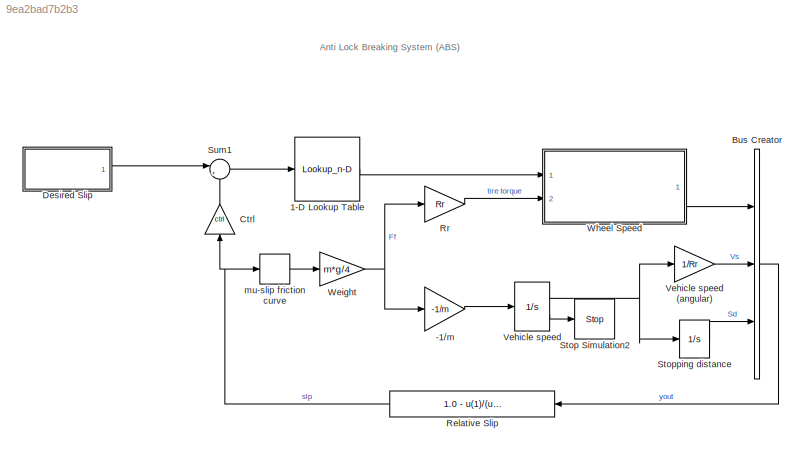
MODEL slx_9ea2bad7b2b3
KIND model
CONFIG AbsTol = auto
CONFIG EnableMultiTasking = off
CONFIG FixedStep = auto
CONFIG MaxStep = auto
CONFIG MinStep = auto
CONFIG RelTol = 1e-3
CONFIG SampleTimeConstraint = Unconstrained
CONFIG SolverName = VariableStepAuto
CONFIG StartTime = 0.0
CONFIG StopTime = 25
WORKSPACE source: mxarray member
WORKSPACE I = 5
WORKSPACE Kf = 1
WORKSPACE PBmax = 1500
WORKSPACE Rr = 1.25
WORKSPACE TB = 0.01
WORKSPACE ctrl = 1
WORKSPACE g = 32.18
WORKSPACE m = 50
WORKSPACE mu = [0 0.4 0.8 0.97 1 0.98 0.96 0.94 0.92 0.9 0.88 0.855 ... (21 elements, 1x21)]
WORKSPACE slip = [0 0.05 0.1 0.15 0.2 0.25 0.3 0.35 0.4 0.45 0.5 0.55 ... (21 elements, 1x21)]
WORKSPACE v0 = 88
BLOCK [Gain] -1//m
  Gain = -1/m
  OutDataTypeStr = Inherit: Same as input
  ParamDataTypeStr = Inherit: Same as input
  SaturateOnIntegerOverflow = on
BLOCK [Lookup_n-D] 1-D Lookup Table
  BreakpointsForDimension1 = [-5:5]
  InputPortMap = u0
  InternalRulePriority = Speed
  NumberOfTableDimensions = 1
  Ports = [1, 1]
  RndMeth = Simplest
  Table = tanh([-5:5])
BLOCK [BusCreator] Bus Creator
  DisplayOption = bar
  InheritFromInputs = on
  Inputs = 3
  Ports = [3, 1]
BLOCK [Gain] Ctrl
  Gain = ctrl
  NameLocation = left
  OutDataTypeStr = Inherit: Same as input
  ParamDataTypeStr = Inherit: Same as input
  SaturateOnIntegerOverflow = on
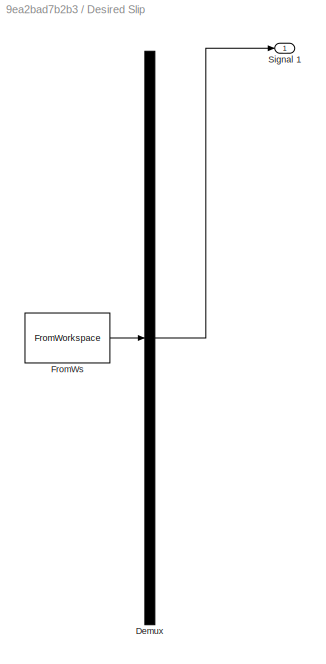
BLOCK [SubSystem] Desired Slip 
  ClipboardFcn = sigbuilder_block('clipboard');
  CloseFcn = sigbuilder_block('close');
  ContinueFcn = sigbuilder_block('continue');
  CopyFcn = sigbuilder_block('copy');
  DeleteFcn = sigbuilder_block('delete');
  LoadFcn = sigbuilder_block('load');
  MaskHideContents = on
  ModelCloseFcn = sigbuilder_block('modelClose');
  NameChangeFcn = sigbuilder_block('namechange');
  OpenFcn = sigbuilder_block('open',[448.2 129 550.8 400.2 ]);
  PauseFcn = sigbuilder_block('pause');
  Ports = [0, 1]
  PreSaveFcn = sigbuilder_block('preSave');
  RequestExecContextInheritance = off
  StartFcn = sigbuilder_block('start');
  StopFcn = sigbuilder_block('stop');
  Tag = STV Subsys
BLOCK [Demux] Desired Slip /Demux
  DisplayOption = none
  Outputs = 1
  Ports = [1, 1]
  Tag = STV Demux
BLOCK [FromWorkspace] Desired Slip /FromWs
  Tag = STV FromWs
  VariableName = tuvar
BLOCK [Outport] Desired Slip /Signal 1
  Tag = STV Outport
BLOCK [Fcn] Relative Slip
  Expr = 1.0 - u(1)/(u(2) + (u(2)==0)*eps)
BLOCK [Gain] Rr
  Gain = Rr
  OutDataTypeStr = Inherit: Same as input
  ParamDataTypeStr = Inherit: Same as input
  SaturateOnIntegerOverflow = on
BLOCK [Stop] Stop Simulation2
BLOCK [Integrator] Stopping distance
  LowerSaturationLimit = 0
  Ports = [1, 1]
  UpperSaturationLimit = 1000
BLOCK [Sum] Sum1
  InputSameDT = on
  Inputs = |+-
  OutDataTypeStr = Inherit: Same as first input
  Ports = [2, 1]
  SaturateOnIntegerOverflow = on
BLOCK [Integrator] Vehicle speed
  InitialCondition = v0
  LimitOutput = on
  LowerSaturationLimit = 0
  Ports = [1, 2]
  ShowSaturationPort = on
  UpperSaturationLimit = 1000
BLOCK [Gain] Vehicle speed (angular)
  Gain = 1/Rr
  OutDataTypeStr = Inherit: Same as input
  ParamDataTypeStr = Inherit: Same as input
  SaturateOnIntegerOverflow = on
BLOCK [Gain] Weight
  Gain = m*g/4
  OutDataTypeStr = Inherit: Same as input
  ParamDataTypeStr = Inherit: Same as input
  SaturateOnIntegerOverflow = on
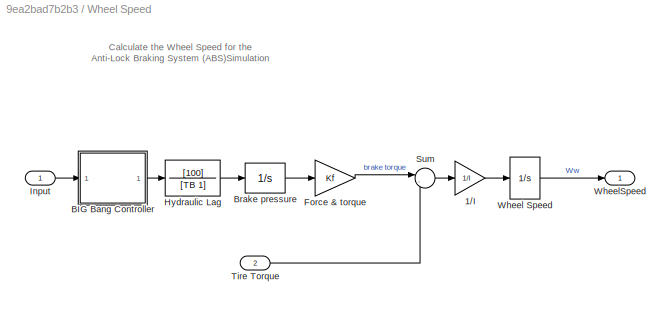
BLOCK [SubSystem] Wheel Speed
  Ports = [2, 1]
  RequestExecContextInheritance = off
BLOCK [Gain] Wheel Speed/1//I
  Gain = 1/I
  OutDataTypeStr = Inherit: Same as input
  ParamDataTypeStr = Inherit: Same as input
  SaturateOnIntegerOverflow = on
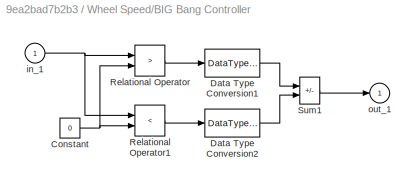
BLOCK [SubSystem] Wheel Speed/BIG Bang Controller
  Ports = [1, 1]
  RequestExecContextInheritance = off
BLOCK [Constant] Wheel Speed/BIG Bang Controller/Constant
  Value = 0
BLOCK [DataTypeConversion] Wheel Speed/BIG Bang Controller/Data Type Conversion1
  OutDataTypeStr = double
BLOCK [DataTypeConversion] Wheel Speed/BIG Bang Controller/Data Type Conversion2
  OutDataTypeStr = double
BLOCK [RelationalOperator] Wheel Speed/BIG Bang Controller/Relational Operator
  Operator = >
  OutDataTypeStr = boolean
  Ports = [2, 1]
BLOCK [RelationalOperator] Wheel Speed/BIG Bang Controller/Relational Operator1
  Operator = <
  OutDataTypeStr = boolean
  Ports = [2, 1]
BLOCK [Sum] Wheel Speed/BIG Bang Controller/Sum1
  IconShape = rectangular
  InputSameDT = on
  Inputs = +-
  OutDataTypeStr = Inherit: Same as first input
  Ports = [2, 1]
  SaturateOnIntegerOverflow = on
BLOCK [Inport] Wheel Speed/BIG Bang Controller/in_1
BLOCK [Outport] Wheel Speed/BIG Bang Controller/out_1
  InitialOutput = 0
  VectorParamsAs1DForOutWhenUnconnected = off
BLOCK [Integrator] Wheel Speed/Brake pressure
  LimitOutput = on
  LowerSaturationLimit = 0
  Ports = [1, 1]
  UpperSaturationLimit = PBmax
BLOCK [Gain] Wheel Speed/Force & torque
  Gain = Kf
  OutDataTypeStr = Inherit: Same as input
  ParamDataTypeStr = Inherit: Same as input
  SaturateOnIntegerOverflow = on
BLOCK [TransferFcn] Wheel Speed/Hydraulic Lag 
  Denominator = [TB 1]
  Numerator = [100]
BLOCK [Inport] Wheel Speed/Input
  SampleTime = 0
BLOCK [Sum] Wheel Speed/Sum
  InputSameDT = on
  Inputs = |-+
  OutDataTypeStr = Inherit: Same as first input
  Ports = [2, 1]
  SaturateOnIntegerOverflow = on
BLOCK [Inport] Wheel Speed/Tire Torque
  Port = 2
BLOCK [Integrator] Wheel Speed/Wheel Speed
  InitialCondition = v0/Rr
  LimitOutput = on
  LowerSaturationLimit = 0
  Ports = [1, 1]
  UpperSaturationLimit = 1000
BLOCK [Outport] Wheel Speed/WheelSpeed
  VectorParamsAs1DForOutWhenUnconnected = off
BLOCK [Lookup_n-D] mu-slip friction curve
  BreakpointsForDimension1 = slip
  InputPortMap = u0
  NumberOfTableDimensions = 1
  Ports = [1, 1]
  SaturateOnIntegerOverflow = on
  Table = mu
ANNOTATION (root): Anti Lock Breaking System (ABS)
ANNOTATION Wheel Speed: Calculate the Wheel Speed for the Anti-Lock Braking System (ABS)Simulation
LINE -1//m:1 -> Vehicle speed:1
LINE 1-D Lookup Table:1 -> Wheel Speed:1
LINE Bus Creator:1 -> Relative Slip:1
LINE Ctrl:1 -> Sum1:2
LINE Desired Slip :1 -> Sum1:1
NET Relative Slip:1 -> Ctrl:1, mu-slip friction curve:1
LINE Rr:1 -> Wheel Speed:2
LINE Stopping distance:1 -> Bus Creator:3
LINE Sum1:1 -> 1-D Lookup Table:1
LINE Vehicle speed (angular):1 -> Bus Creator:2
NET Vehicle speed:1 -> Stopping distance:1, Vehicle speed (angular):1
LINE Vehicle speed:2 -> Stop Simulation2:1
NET Weight:1 -> -1//m:1, Rr:1
LINE Wheel Speed/1//I:1 -> Wheel Speed/Wheel Speed:1
NET Wheel Speed/BIG Bang Controller/Constant:1 -> Wheel Speed/BIG Bang Controller/Relational Operator1:2, Wheel Speed/BIG Bang Controller/Relational Operator:2
LINE Wheel Speed/BIG Bang Controller/Data Type Conversion1:1 -> Wheel Speed/BIG Bang Controller/Sum1:1
LINE Wheel Speed/BIG Bang Controller/Data Type Conversion2:1 -> Wheel Speed/BIG Bang Controller/Sum1:2
LINE Wheel Speed/BIG Bang Controller/Relational Operator1:1 -> Wheel Speed/BIG Bang Controller/Data Type Conversion2:1
LINE Wheel Speed/BIG Bang Controller/Relational Operator:1 -> Wheel Speed/BIG Bang Controller/Data Type Conversion1:1
LINE Wheel Speed/BIG Bang Controller/Sum1:1 -> Wheel Speed/BIG Bang Controller/out_1:1
NET Wheel Speed/BIG Bang Controller/in_1:1 -> Wheel Speed/BIG Bang Controller/Relational Operator1:1, Wheel Speed/BIG Bang Controller/Relational Operator:1
LINE Wheel Speed/BIG Bang Controller:1 -> Wheel Speed/Hydraulic Lag :1
LINE Wheel Speed/Brake pressure:1 -> Wheel Speed/Force & torque:1
LINE Wheel Speed/Force & torque:1 -> Wheel Speed/Sum:1
LINE Wheel Speed/Hydraulic Lag :1 -> Wheel Speed/Brake pressure:1
LINE Wheel Speed/Input:1 -> Wheel Speed/BIG Bang Controller:1
LINE Wheel Speed/Sum:1 -> Wheel Speed/1//I:1
LINE Wheel Speed/Tire Torque:1 -> Wheel Speed/Sum:2
LINE Wheel Speed/Wheel Speed:1 -> Wheel Speed/WheelSpeed:1
LINE Wheel Speed:1 -> Bus Creator:1
LINE mu-slip friction curve:1 -> Weight:1
note: NET lines group one-source signal fan-out (src -> all destinations, sorted); 1:1 wires keep LINE
